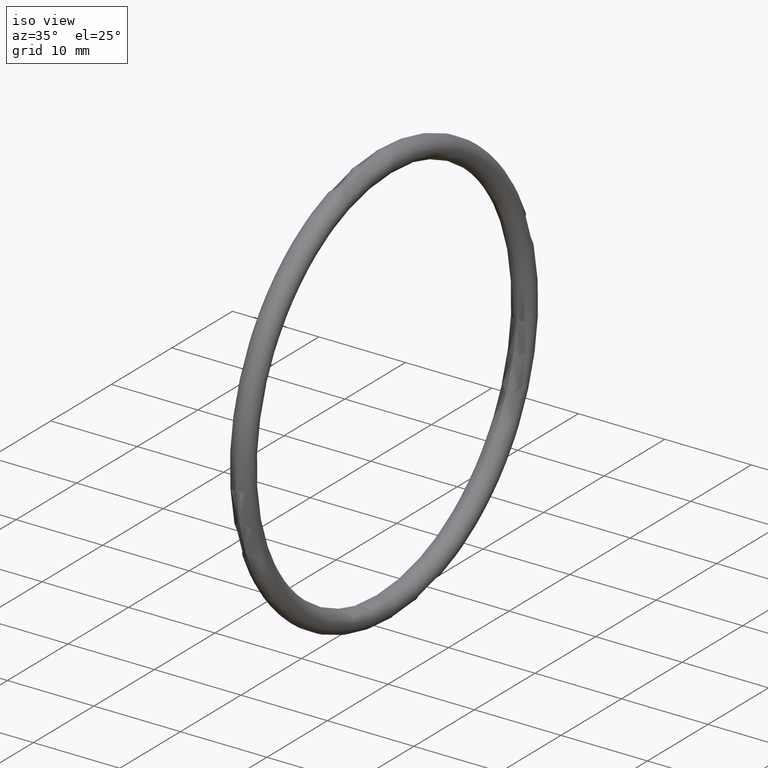
[diagram: clean part render]
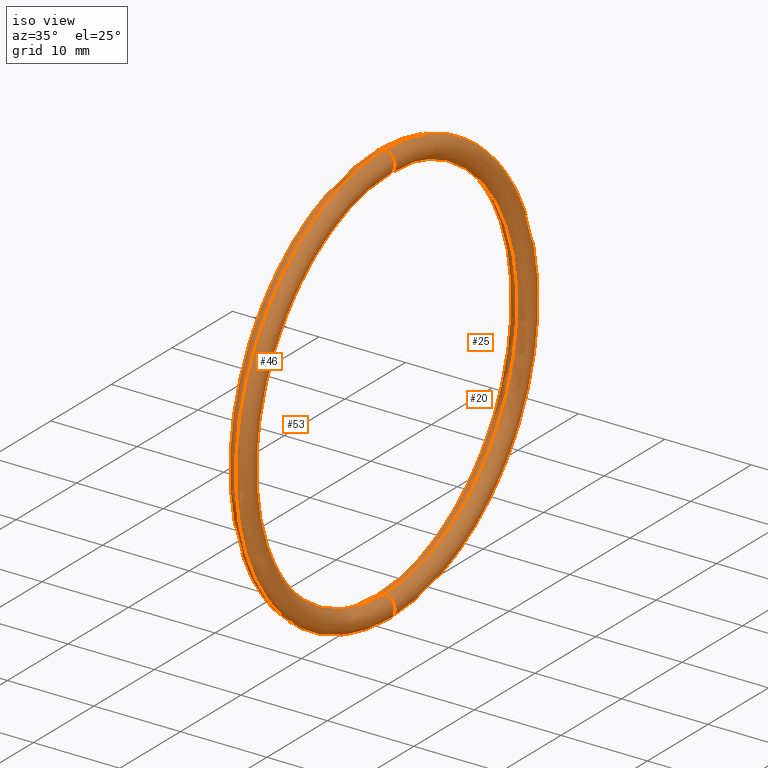
[diagram: same view with one multi-face feature highlighted, each face labeled with its STEP entity id]
A machine part, iso view. The highlighted faces form ONE feature: a constant-radius fillet chain: 4 tangent blend faces with common blend radius 1.27 mm. The faces share edges in the B-rep.
Their STEP definitions:
[1] entity #53 (Torus):
#16 = CIRCLE ( 'NONE', #30, 0.8649999999999998800 ) ;
#17 = VERTEX_POINT ( 'NONE', #21 ) ;
#19 = EDGE_CURVE ( 'NONE', #22, #17, #16, .T. ) ;
#21 = CARTESIAN_POINT ( 'NONE',  ( 0.1000000000000001200, 0.0000000000000000000, 0.8649999999999998800 ) ) ;
#22 = VERTEX_POINT ( 'NONE', #69 ) ;
#24 = EDGE_CURVE ( 'NONE', #44, #40, #68, .T. ) ;
#26 = ORIENTED_EDGE ( 'NONE', *, *, #24, .F. ) ;
#27 = DIRECTION ( 'NONE',  ( 0.0000000000000000000, 0.0000000000000000000, 1.000000000000000000 ) ) ;
#28 = DIRECTION ( 'NONE',  ( -1.000000000000000000, -0.0000000000000000000, -0.0000000000000000000 ) ) ;
#29 = CARTESIAN_POINT ( 'NONE',  ( 0.1000000000000001200, 0.0000000000000000000, 0.0000000000000000000 ) ) ;
#30 = AXIS2_PLACEMENT_3D ( 'NONE', #29, #28, #27 ) ;
#35 = EDGE_LOOP ( 'NONE', ( #26, #59, #54, #52 ) ) ;
#40 = VERTEX_POINT ( 'NONE', #95 ) ;
#43 = EDGE_CURVE ( 'NONE', #22, #44, #93, .T. ) ;
#44 = VERTEX_POINT ( 'NONE', #94 ) ;
#51 = EDGE_CURVE ( 'NONE', #17, #40, #98, .T. ) ;
#52 = ORIENTED_EDGE ( 'NONE', *, *, #51, .T. ) ;
#53 = ADVANCED_FACE ( 'NONE', ( #100 ), #107, .T. ) ;
#54 = ORIENTED_EDGE ( 'NONE', *, *, #19, .T. ) ;
#59 = ORIENTED_EDGE ( 'NONE', *, *, #43, .F. ) ;
#65 = DIRECTION ( 'NONE',  ( 0.0000000000000000000, 0.0000000000000000000, 1.000000000000000000 ) ) ;
#66 = DIRECTION ( 'NONE',  ( -1.000000000000000000, -0.0000000000000000000, -0.0000000000000000000 ) ) ;
#67 = AXIS2_PLACEMENT_3D ( 'NONE', #70, #66, #65 ) ;
#68 = CIRCLE ( 'NONE', #67, 0.9649999999999999700 ) ;
#69 = CARTESIAN_POINT ( 'NONE',  ( 0.1000000000000001200, 1.059319481262460500E-016, -0.8649999999999998800 ) ) ;
#70 = CARTESIAN_POINT ( 'NONE',  ( 0.1000000000000001200, 0.0000000000000000000, 0.0000000000000000000 ) ) ;
#75 = DIRECTION ( 'NONE',  ( 0.0000000000000000000, -1.224646799147351700E-016, 1.000000000000000000 ) ) ;
#76 = DIRECTION ( 'NONE',  ( -0.0000000000000000000, 1.000000000000000000, 1.224646799147353200E-016 ) ) ;
#80 = CARTESIAN_POINT ( 'NONE',  ( 0.1000000000000001200, 1.120551821219828000E-016, -0.9149999999999999200 ) ) ;
#92 = AXIS2_PLACEMENT_3D ( 'NONE', #80, #76, #75 ) ;
#93 = CIRCLE ( 'NONE', #92, 0.05000000000000001000 ) ;
#94 = CARTESIAN_POINT ( 'NONE',  ( 0.1000000000000001200, 1.181784161177195800E-016, -0.9649999999999999700 ) ) ;
#95 = CARTESIAN_POINT ( 'NONE',  ( 0.1000000000000001200, 0.0000000000000000000, 0.9649999999999999700 ) ) ;
#98 = CIRCLE ( 'NONE', #105, 0.05000000000000001000 ) ;
#100 = FACE_OUTER_BOUND ( 'NONE', #35, .T. ) ;
#101 = DIRECTION ( 'NONE',  ( 0.0000000000000000000, 0.0000000000000000000, -1.000000000000000000 ) ) ;
#103 = CARTESIAN_POINT ( 'NONE',  ( 0.1000000000000001200, 0.0000000000000000000, 0.9149999999999999200 ) ) ;
#105 = AXIS2_PLACEMENT_3D ( 'NONE', #103, #111, #101 ) ;
#106 = AXIS2_PLACEMENT_3D ( 'NONE', #112, #110, #109 ) ;
#107 = TOROIDAL_SURFACE ( 'NONE', #106, 0.9149999999999999200, 0.05000000000000000300 ) ;
#109 = DIRECTION ( 'NONE',  ( 0.0000000000000000000, 0.0000000000000000000, 1.000000000000000000 ) ) ;
#110 = DIRECTION ( 'NONE',  ( -1.000000000000000000, -0.0000000000000000000, -0.0000000000000000000 ) ) ;
#111 = DIRECTION ( 'NONE',  ( 0.0000000000000000000, -1.000000000000000000, 0.0000000000000000000 ) ) ;
#112 = CARTESIAN_POINT ( 'NONE',  ( 0.1000000000000001200, 0.0000000000000000000, 0.0000000000000000000 ) ) ;
[2] entity #25 (Torus):
#3 = DIRECTION ( 'NONE',  ( -1.000000000000000000, -0.0000000000000000000, -0.0000000000000000000 ) ) ;
#4 = DIRECTION ( 'NONE',  ( 0.0000000000000000000, 0.0000000000000000000, 1.000000000000000000 ) ) ;
#5 = CARTESIAN_POINT ( 'NONE',  ( 0.1000000000000001200, 0.0000000000000000000, 0.0000000000000000000 ) ) ;
#6 = DIRECTION ( 'NONE',  ( 0.0000000000000000000, 0.0000000000000000000, 1.000000000000000000 ) ) ;
#7 = DIRECTION ( 'NONE',  ( -1.000000000000000000, -0.0000000000000000000, -0.0000000000000000000 ) ) ;
#13 = ORIENTED_EDGE ( 'NONE', *, *, #51, .F. ) ;
#17 = VERTEX_POINT ( 'NONE', #21 ) ;
#21 = CARTESIAN_POINT ( 'NONE',  ( 0.1000000000000001200, 0.0000000000000000000, 0.8649999999999998800 ) ) ;
#22 = VERTEX_POINT ( 'NONE', #69 ) ;
#25 = ADVANCED_FACE ( 'NONE', ( #63 ), #71, .T. ) ;
#32 = ORIENTED_EDGE ( 'NONE', *, *, #47, .T. ) ;
#34 = EDGE_LOOP ( 'NONE', ( #48, #13, #32, #49 ) ) ;
#40 = VERTEX_POINT ( 'NONE', #95 ) ;
#43 = EDGE_CURVE ( 'NONE', #22, #44, #93, .T. ) ;
#44 = VERTEX_POINT ( 'NONE', #94 ) ;
#47 = EDGE_CURVE ( 'NONE', #17, #22, #88, .T. ) ;
#48 = ORIENTED_EDGE ( 'NONE', *, *, #60, .F. ) ;
#49 = ORIENTED_EDGE ( 'NONE', *, *, #43, .T. ) ;
#51 = EDGE_CURVE ( 'NONE', #17, #40, #98, .T. ) ;
#60 = EDGE_CURVE ( 'NONE', #40, #44, #114, .T. ) ;
#63 = FACE_OUTER_BOUND ( 'NONE', #34, .T. ) ;
#69 = CARTESIAN_POINT ( 'NONE',  ( 0.1000000000000001200, 1.059319481262460500E-016, -0.8649999999999998800 ) ) ;
#71 = TOROIDAL_SURFACE ( 'NONE', #83, 0.9149999999999999200, 0.05000000000000000300 ) ;
#75 = DIRECTION ( 'NONE',  ( 0.0000000000000000000, -1.224646799147351700E-016, 1.000000000000000000 ) ) ;
#76 = DIRECTION ( 'NONE',  ( -0.0000000000000000000, 1.000000000000000000, 1.224646799147353200E-016 ) ) ;
#80 = CARTESIAN_POINT ( 'NONE',  ( 0.1000000000000001200, 1.120551821219828000E-016, -0.9149999999999999200 ) ) ;
#81 = DIRECTION ( 'NONE',  ( 0.0000000000000000000, 0.0000000000000000000, 1.000000000000000000 ) ) ;
#82 = CARTESIAN_POINT ( 'NONE',  ( 0.1000000000000001200, 0.0000000000000000000, 0.0000000000000000000 ) ) ;
#83 = AXIS2_PLACEMENT_3D ( 'NONE', #82, #85, #81 ) ;
#85 = DIRECTION ( 'NONE',  ( -1.000000000000000000, -0.0000000000000000000, -0.0000000000000000000 ) ) ;
#86 = CARTESIAN_POINT ( 'NONE',  ( 0.1000000000000001200, 0.0000000000000000000, 0.0000000000000000000 ) ) ;
#87 = AXIS2_PLACEMENT_3D ( 'NONE', #86, #3, #4 ) ;
#88 = CIRCLE ( 'NONE', #87, 0.8649999999999998800 ) ;
#92 = AXIS2_PLACEMENT_3D ( 'NONE', #80, #76, #75 ) ;
#93 = CIRCLE ( 'NONE', #92, 0.05000000000000001000 ) ;
#94 = CARTESIAN_POINT ( 'NONE',  ( 0.1000000000000001200, 1.181784161177195800E-016, -0.9649999999999999700 ) ) ;
#95 = CARTESIAN_POINT ( 'NONE',  ( 0.1000000000000001200, 0.0000000000000000000, 0.9649999999999999700 ) ) ;
#98 = CIRCLE ( 'NONE', #105, 0.05000000000000001000 ) ;
#101 = DIRECTION ( 'NONE',  ( 0.0000000000000000000, 0.0000000000000000000, -1.000000000000000000 ) ) ;
#103 = CARTESIAN_POINT ( 'NONE',  ( 0.1000000000000001200, 0.0000000000000000000, 0.9149999999999999200 ) ) ;
#105 = AXIS2_PLACEMENT_3D ( 'NONE', #103, #111, #101 ) ;
#111 = DIRECTION ( 'NONE',  ( 0.0000000000000000000, -1.000000000000000000, 0.0000000000000000000 ) ) ;
#113 = AXIS2_PLACEMENT_3D ( 'NONE', #5, #7, #6 ) ;
#114 = CIRCLE ( 'NONE', #113, 0.9649999999999999700 ) ;
[3] entity #20 (Torus):
#1 = DIRECTION ( 'NONE',  ( -1.000000000000000000, -0.0000000000000000000, -0.0000000000000000000 ) ) ;
#2 = DIRECTION ( 'NONE',  ( 0.0000000000000000000, 0.0000000000000000000, 1.000000000000000000 ) ) ;
#3 = DIRECTION ( 'NONE',  ( -1.000000000000000000, -0.0000000000000000000, -0.0000000000000000000 ) ) ;
#4 = DIRECTION ( 'NONE',  ( 0.0000000000000000000, 0.0000000000000000000, 1.000000000000000000 ) ) ;
#5 = CARTESIAN_POINT ( 'NONE',  ( 0.1000000000000001200, 0.0000000000000000000, 0.0000000000000000000 ) ) ;
#6 = DIRECTION ( 'NONE',  ( 0.0000000000000000000, 0.0000000000000000000, 1.000000000000000000 ) ) ;
#7 = DIRECTION ( 'NONE',  ( -1.000000000000000000, -0.0000000000000000000, -0.0000000000000000000 ) ) ;
#17 = VERTEX_POINT ( 'NONE', #21 ) ;
#20 = ADVANCED_FACE ( 'NONE', ( #31 ), #57, .T. ) ;
#21 = CARTESIAN_POINT ( 'NONE',  ( 0.1000000000000001200, 0.0000000000000000000, 0.8649999999999998800 ) ) ;
#22 = VERTEX_POINT ( 'NONE', #69 ) ;
#31 = FACE_OUTER_BOUND ( 'NONE', #37, .T. ) ;
#37 = EDGE_LOOP ( 'NONE', ( #38, #39, #45, #58 ) ) ;
#38 = ORIENTED_EDGE ( 'NONE', *, *, #42, .F. ) ;
#39 = ORIENTED_EDGE ( 'NONE', *, *, #60, .T. ) ;
#40 = VERTEX_POINT ( 'NONE', #95 ) ;
#42 = EDGE_CURVE ( 'NONE', #40, #17, #79, .T. ) ;
#44 = VERTEX_POINT ( 'NONE', #94 ) ;
#45 = ORIENTED_EDGE ( 'NONE', *, *, #50, .T. ) ;
#47 = EDGE_CURVE ( 'NONE', #17, #22, #88, .T. ) ;
#50 = EDGE_CURVE ( 'NONE', #44, #22, #108, .T. ) ;
#55 = CARTESIAN_POINT ( 'NONE',  ( 0.1000000000000001200, 0.0000000000000000000, 0.0000000000000000000 ) ) ;
#56 = AXIS2_PLACEMENT_3D ( 'NONE', #55, #1, #2 ) ;
#57 = TOROIDAL_SURFACE ( 'NONE', #56, 0.9149999999999999200, 0.05000000000000000300 ) ;
#58 = ORIENTED_EDGE ( 'NONE', *, *, #47, .F. ) ;
#60 = EDGE_CURVE ( 'NONE', #40, #44, #114, .T. ) ;
#69 = CARTESIAN_POINT ( 'NONE',  ( 0.1000000000000001200, 1.059319481262460500E-016, -0.8649999999999998800 ) ) ;
#77 = CARTESIAN_POINT ( 'NONE',  ( 0.1000000000000001200, 0.0000000000000000000, 0.9149999999999999200 ) ) ;
#78 = AXIS2_PLACEMENT_3D ( 'NONE', #77, #84, #96 ) ;
#79 = CIRCLE ( 'NONE', #78, 0.05000000000000001000 ) ;
#84 = DIRECTION ( 'NONE',  ( 0.0000000000000000000, -1.000000000000000000, 0.0000000000000000000 ) ) ;
#86 = CARTESIAN_POINT ( 'NONE',  ( 0.1000000000000001200, 0.0000000000000000000, 0.0000000000000000000 ) ) ;
#87 = AXIS2_PLACEMENT_3D ( 'NONE', #86, #3, #4 ) ;
#88 = CIRCLE ( 'NONE', #87, 0.8649999999999998800 ) ;
#94 = CARTESIAN_POINT ( 'NONE',  ( 0.1000000000000001200, 1.181784161177195800E-016, -0.9649999999999999700 ) ) ;
#95 = CARTESIAN_POINT ( 'NONE',  ( 0.1000000000000001200, 0.0000000000000000000, 0.9649999999999999700 ) ) ;
#96 = DIRECTION ( 'NONE',  ( 0.0000000000000000000, 0.0000000000000000000, -1.000000000000000000 ) ) ;
#97 = DIRECTION ( 'NONE',  ( 0.0000000000000000000, -1.224646799147351700E-016, 1.000000000000000000 ) ) ;
#99 = CARTESIAN_POINT ( 'NONE',  ( 0.1000000000000001200, 1.120551821219828000E-016, -0.9149999999999999200 ) ) ;
#102 = DIRECTION ( 'NONE',  ( -0.0000000000000000000, 1.000000000000000000, 1.224646799147353200E-016 ) ) ;
#104 = AXIS2_PLACEMENT_3D ( 'NONE', #99, #102, #97 ) ;
#108 = CIRCLE ( 'NONE', #104, 0.05000000000000001000 ) ;
#113 = AXIS2_PLACEMENT_3D ( 'NONE', #5, #7, #6 ) ;
#114 = CIRCLE ( 'NONE', #113, 0.9649999999999999700 ) ;
[4] entity #46 (Torus):
#14 = EDGE_LOOP ( 'NONE', ( #15, #23, #41, #18 ) ) ;
#15 = ORIENTED_EDGE ( 'NONE', *, *, #50, .F. ) ;
#16 = CIRCLE ( 'NONE', #30, 0.8649999999999998800 ) ;
#17 = VERTEX_POINT ( 'NONE', #21 ) ;
#18 = ORIENTED_EDGE ( 'NONE', *, *, #19, .F. ) ;
#19 = EDGE_CURVE ( 'NONE', #22, #17, #16, .T. ) ;
#21 = CARTESIAN_POINT ( 'NONE',  ( 0.1000000000000001200, 0.0000000000000000000, 0.8649999999999998800 ) ) ;
#22 = VERTEX_POINT ( 'NONE', #69 ) ;
#23 = ORIENTED_EDGE ( 'NONE', *, *, #24, .T. ) ;
#24 = EDGE_CURVE ( 'NONE', #44, #40, #68, .T. ) ;
#27 = DIRECTION ( 'NONE',  ( 0.0000000000000000000, 0.0000000000000000000, 1.000000000000000000 ) ) ;
#28 = DIRECTION ( 'NONE',  ( -1.000000000000000000, -0.0000000000000000000, -0.0000000000000000000 ) ) ;
#29 = CARTESIAN_POINT ( 'NONE',  ( 0.1000000000000001200, 0.0000000000000000000, 0.0000000000000000000 ) ) ;
#30 = AXIS2_PLACEMENT_3D ( 'NONE', #29, #28, #27 ) ;
#40 = VERTEX_POINT ( 'NONE', #95 ) ;
#41 = ORIENTED_EDGE ( 'NONE', *, *, #42, .T. ) ;
#42 = EDGE_CURVE ( 'NONE', #40, #17, #79, .T. ) ;
#44 = VERTEX_POINT ( 'NONE', #94 ) ;
#46 = ADVANCED_FACE ( 'NONE', ( #74 ), #72, .T. ) ;
#50 = EDGE_CURVE ( 'NONE', #44, #22, #108, .T. ) ;
#65 = DIRECTION ( 'NONE',  ( 0.0000000000000000000, 0.0000000000000000000, 1.000000000000000000 ) ) ;
#66 = DIRECTION ( 'NONE',  ( -1.000000000000000000, -0.0000000000000000000, -0.0000000000000000000 ) ) ;
#67 = AXIS2_PLACEMENT_3D ( 'NONE', #70, #66, #65 ) ;
#68 = CIRCLE ( 'NONE', #67, 0.9649999999999999700 ) ;
#69 = CARTESIAN_POINT ( 'NONE',  ( 0.1000000000000001200, 1.059319481262460500E-016, -0.8649999999999998800 ) ) ;
#70 = CARTESIAN_POINT ( 'NONE',  ( 0.1000000000000001200, 0.0000000000000000000, 0.0000000000000000000 ) ) ;
#72 = TOROIDAL_SURFACE ( 'NONE', #73, 0.9149999999999999200, 0.05000000000000000300 ) ;
#73 = AXIS2_PLACEMENT_3D ( 'NONE', #91, #90, #89 ) ;
#74 = FACE_OUTER_BOUND ( 'NONE', #14, .T. ) ;
#77 = CARTESIAN_POINT ( 'NONE',  ( 0.1000000000000001200, 0.0000000000000000000, 0.9149999999999999200 ) ) ;
#78 = AXIS2_PLACEMENT_3D ( 'NONE', #77, #84, #96 ) ;
#79 = CIRCLE ( 'NONE', #78, 0.05000000000000001000 ) ;
#84 = DIRECTION ( 'NONE',  ( 0.0000000000000000000, -1.000000000000000000, 0.0000000000000000000 ) ) ;
#89 = DIRECTION ( 'NONE',  ( 0.0000000000000000000, 0.0000000000000000000, 1.000000000000000000 ) ) ;
#90 = DIRECTION ( 'NONE',  ( -1.000000000000000000, -0.0000000000000000000, -0.0000000000000000000 ) ) ;
#91 = CARTESIAN_POINT ( 'NONE',  ( 0.1000000000000001200, 0.0000000000000000000, 0.0000000000000000000 ) ) ;
#94 = CARTESIAN_POINT ( 'NONE',  ( 0.1000000000000001200, 1.181784161177195800E-016, -0.9649999999999999700 ) ) ;
#95 = CARTESIAN_POINT ( 'NONE',  ( 0.1000000000000001200, 0.0000000000000000000, 0.9649999999999999700 ) ) ;
#96 = DIRECTION ( 'NONE',  ( 0.0000000000000000000, 0.0000000000000000000, -1.000000000000000000 ) ) ;
#97 = DIRECTION ( 'NONE',  ( 0.0000000000000000000, -1.224646799147351700E-016, 1.000000000000000000 ) ) ;
#99 = CARTESIAN_POINT ( 'NONE',  ( 0.1000000000000001200, 1.120551821219828000E-016, -0.9149999999999999200 ) ) ;
#102 = DIRECTION ( 'NONE',  ( -0.0000000000000000000, 1.000000000000000000, 1.224646799147353200E-016 ) ) ;
#104 = AXIS2_PLACEMENT_3D ( 'NONE', #99, #102, #97 ) ;
#108 = CIRCLE ( 'NONE', #104, 0.05000000000000001000 ) ;